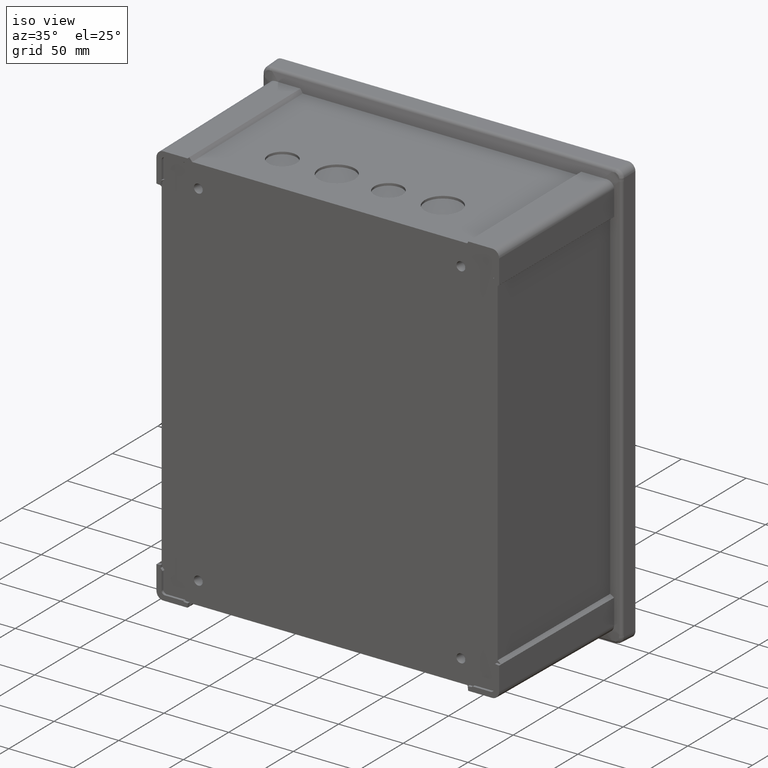
[diagram: clean part render]
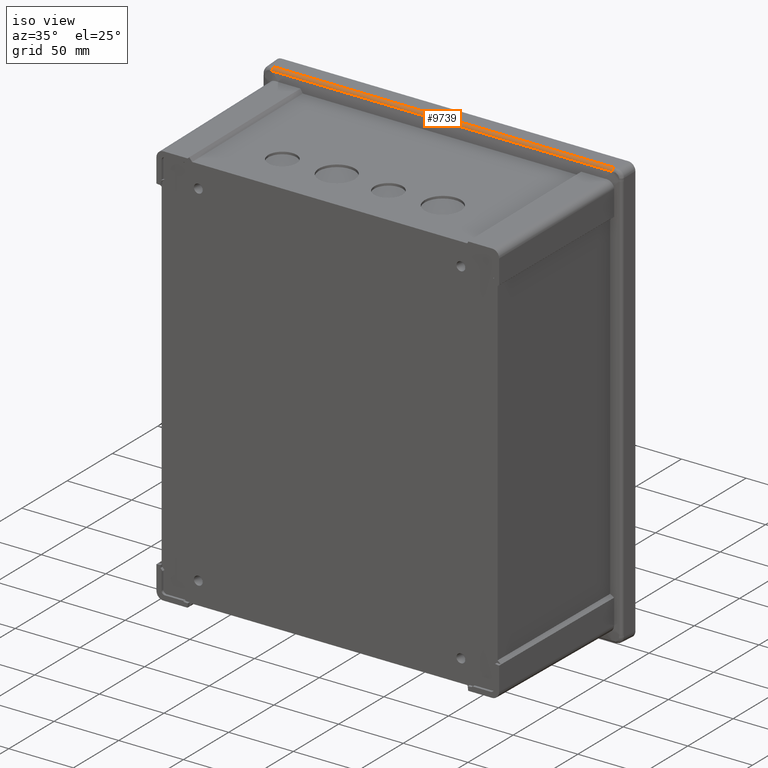
[diagram: same view with one face highlighted and labeled with its STEP entity id]
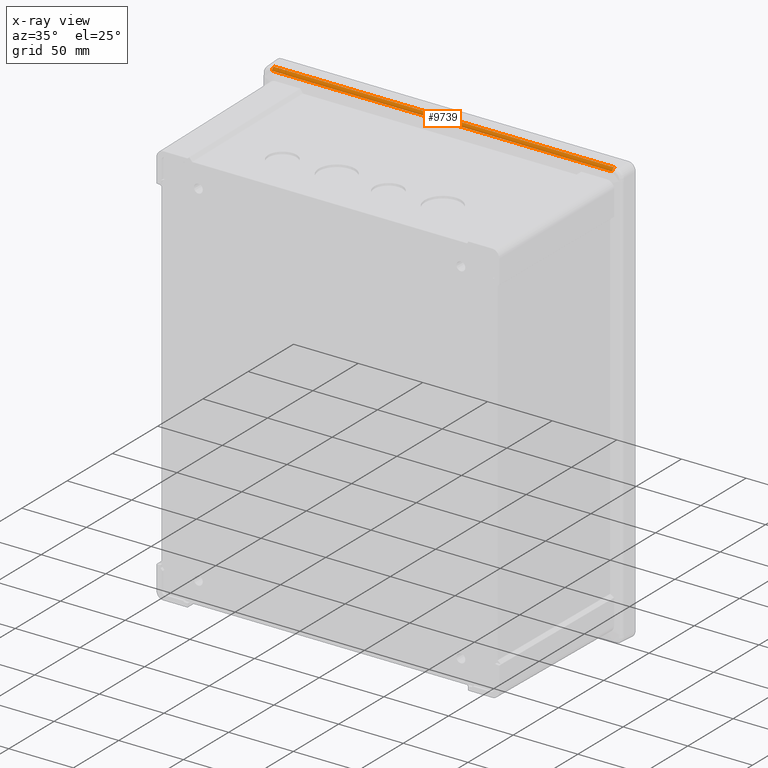
[diagram: x-ray of the same camera — body ghosted, the highlighted face saturated]
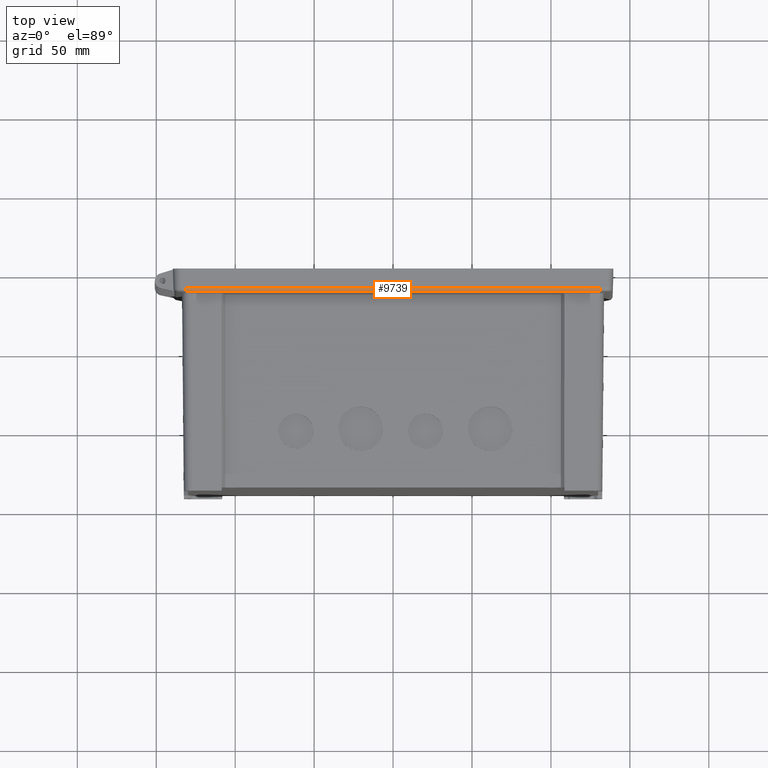
[diagram: same view with one face highlighted and labeled with its STEP entity id]
A machine part, iso view. The second image highlights one B-rep face of the part: STEP entity #9739.
The next image is the same camera in x-ray: the body ghosted, the highlighted face saturated — about 0% of this face is hidden behind the body in this view.
A second angle (top view) of the same face is appended — the face is thin or edge-on in the first view.
In plain terms, the highlighted cylindrical surface (edge-blend (fillet) strip) has radius 2.5 mm, axis along (-1, 0, 0).
Its self-contained STEP definition (entity closure, byte-faithful):
#718=CARTESIAN_POINT('',(1.315543912338E2,-1.204797577904E1,1.658427488402E2));
#1969=CARTESIAN_POINT('',(-1.315543911930E2,-1.196072703700E1,
1.633442717730E2));
#1970=DIRECTION('',(-1.E0,0.E0,0.E0));
#1971=DIRECTION('',(0.E0,-9.781476006556E-1,2.079116911855E-1));
#1972=AXIS2_PLACEMENT_3D('',#1969,#1970,#1971);
#1974=DIRECTION('',(1.E0,-6.951460441582E-13,-3.270493926235E-12));
#1975=VECTOR('',#1974,2.631087823806E2);
#1976=CARTESIAN_POINT('',(-1.315543911906E2,-1.440609603873E1,
1.638640510010E2));
#1977=LINE('',#1976,#1975);
#1978=DIRECTION('',(-1.E0,0.E0,0.E0));
#1979=VECTOR('',#1978,2.631087824697E2);
#1980=CARTESIAN_POINT('',(1.315543912338E2,-1.204797577904E1,1.658427488402E2));
#1981=LINE('',#1980,#1979);
#1991=CARTESIAN_POINT('',(1.315543911930E2,-1.196072703700E1,1.633442717730E2));
#1992=DIRECTION('',(1.E0,0.E0,0.E0));
#1993=DIRECTION('',(0.E0,-3.489949684212E-2,9.993908270142E-1));
#1994=AXIS2_PLACEMENT_3D('',#1991,#1992,#1993);
#6855=VERTEX_POINT('',#718);
#6856=CARTESIAN_POINT('',(-1.315543912358E2,-1.204797577904E1,
1.658427488402E2));
#6857=VERTEX_POINT('',#6856);
#6921=CARTESIAN_POINT('',(-1.315543911906E2,-1.440609603873E1,
1.638640510010E2));
#6922=VERTEX_POINT('',#6921);
#6923=CARTESIAN_POINT('',(1.315543911900E2,-1.440609603892E1,1.638640510001E2));
#6924=VERTEX_POINT('',#6923);
#9727=CARTESIAN_POINT('',(1.315543911930E2,-1.196072703700E1,1.633442717730E2));
#9728=DIRECTION('',(-1.E0,0.E0,0.E0));
#9729=DIRECTION('',(0.E0,0.E0,1.E0));
#9730=AXIS2_PLACEMENT_3D('',#9727,#9728,#9729);
#9731=CYLINDRICAL_SURFACE('',#9730,2.5E0);
#9733=ORIENTED_EDGE('',*,*,#9732,.T.);
#9734=ORIENTED_EDGE('',*,*,#9128,.F.);
#9735=ORIENTED_EDGE('',*,*,#9719,.T.);
#9736=ORIENTED_EDGE('',*,*,#7896,.F.);
#9737=EDGE_LOOP('',(#9733,#9734,#9735,#9736));
#9738=FACE_OUTER_BOUND('',#9737,.F.);
#9739=ADVANCED_FACE('',(#9738),#9731,.T.);
#1973=CIRCLE('',#1972,2.5E0);
#1995=CIRCLE('',#1994,2.5E0);
#7896=EDGE_CURVE('',#6855,#6857,#1981,.T.);
#9128=EDGE_CURVE('',#6922,#6924,#1977,.T.);
#9719=EDGE_CURVE('',#6922,#6857,#1973,.T.);
#9732=EDGE_CURVE('',#6855,#6924,#1995,.T.);